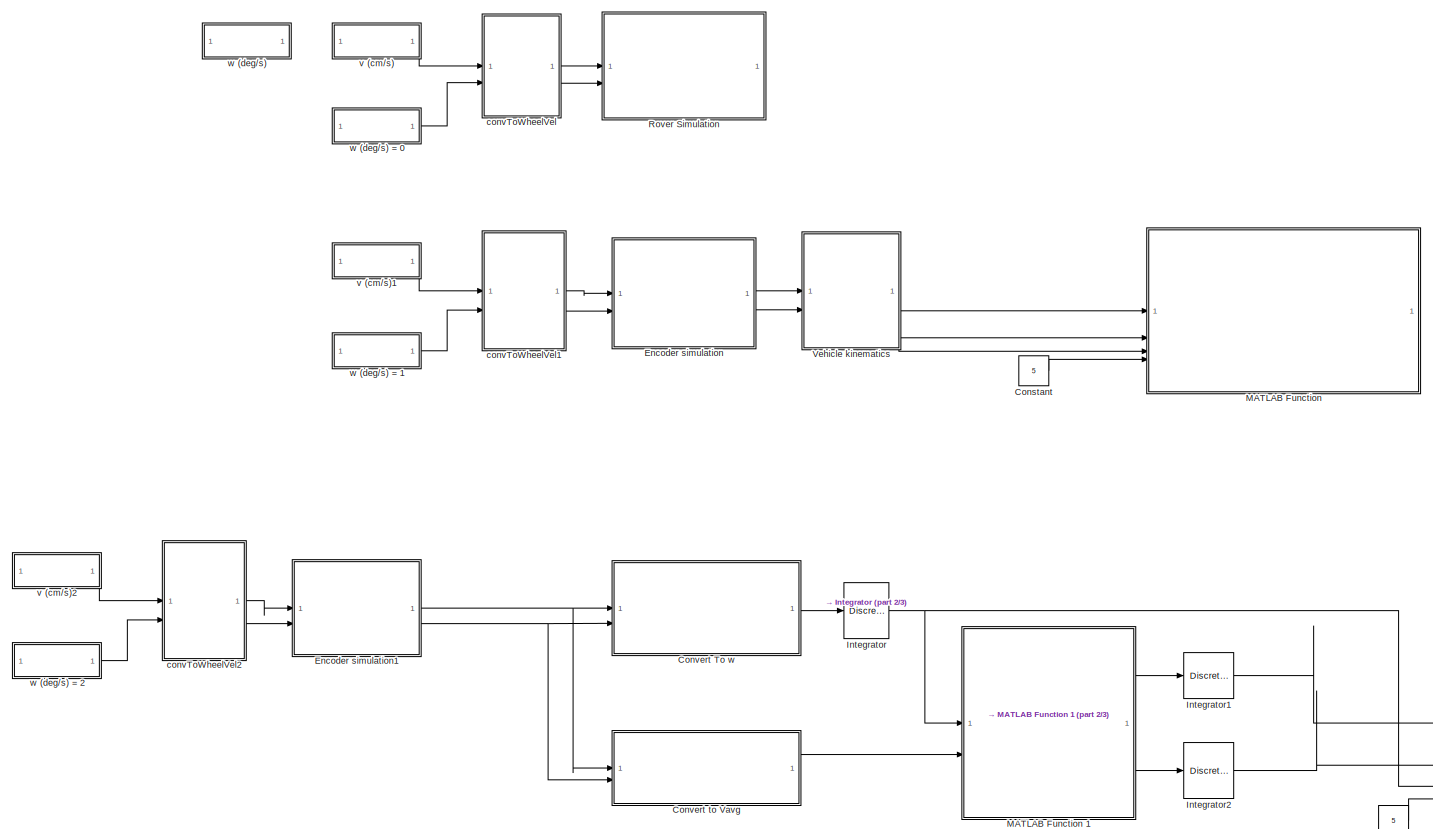
[diagram: root canvas - part 1/3, full width, top band]
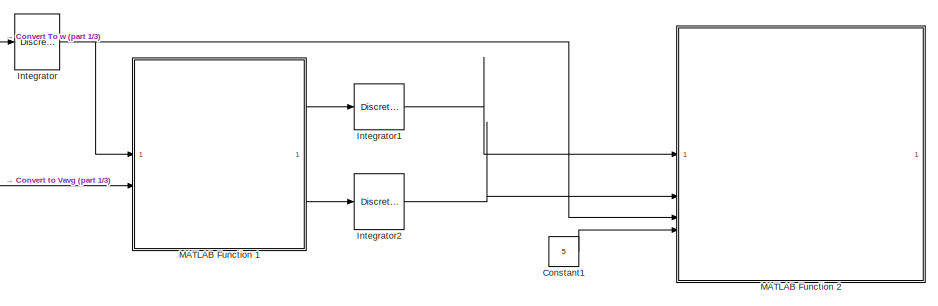
[diagram: root canvas - part 2/3, middle right region]
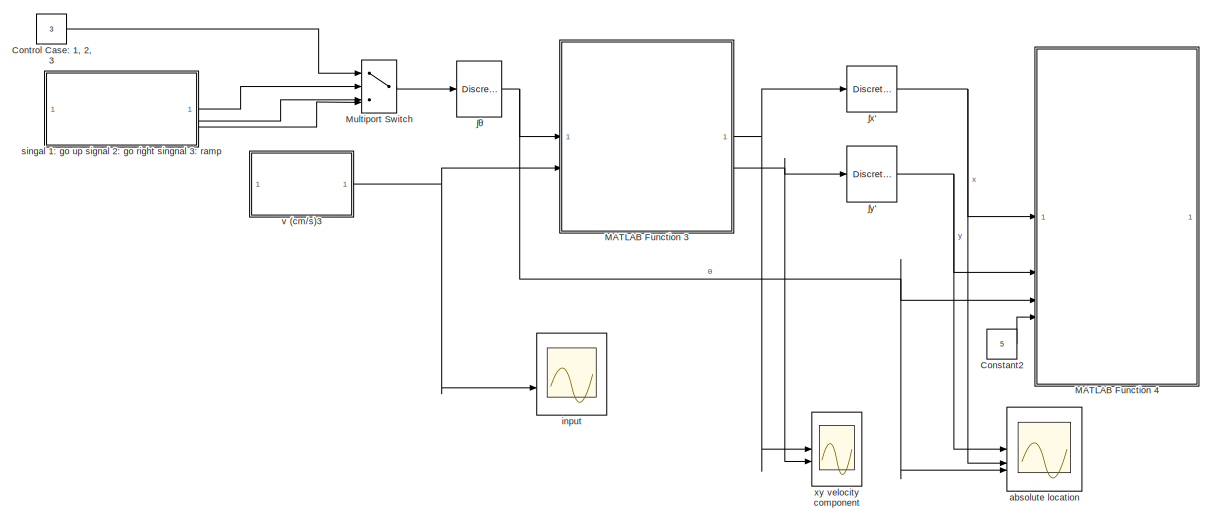
[diagram: root canvas - part 3/3, bottom center region]
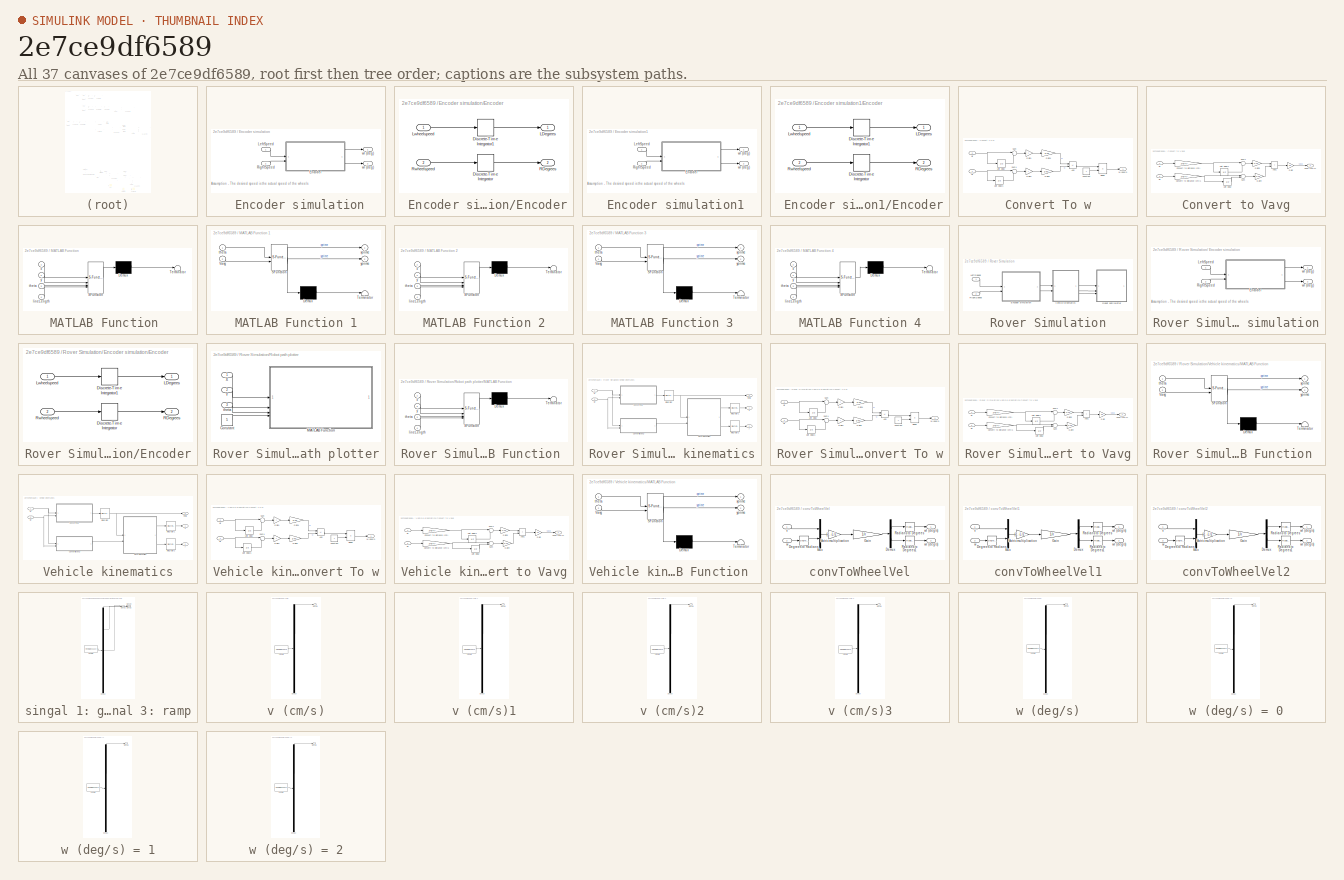
[diagram: thumbnail index - all 37 canvases of the model, root first then tree order]
MODEL slx_2e7ce9df6589
KIND model
CONFIG AbsTol = auto
CONFIG EnableMultiTasking = on
CONFIG FixedStep = TS
CONFIG MaxStep = auto
CONFIG MinStep = auto
CONFIG PostLoadFcn = params
CONFIG RelTol = 1e-3
CONFIG SampleTimeConstraint = Unconstrained
CONFIG SolverName = FixedStepDiscrete
CONFIG StartTime = 0.0
CONFIG StopTime = 5
WORKSPACE source: mxarray member
WORKSPACE Ia = 0.1
WORKSPACE Id = 0.25
WORKSPACE Pa = 5
WORKSPACE Pd = 9
WORKSPACE TS = 0.01
BLOCK [SubSystem]  Encoder simulation
  Commented = on
BLOCK [SubSystem]  Encoder simulation/Encoder
BLOCK [DiscreteIntegrator]  Encoder simulation/Encoder/Discrete-Time Integrator
  ICPrevOutput = DiscIntNeverNeededParam
  ICPrevScaledInput = DiscIntNeverNeededParam
  InitialConditionSetting = Auto
  SampleTime = -1
BLOCK [DiscreteIntegrator]  Encoder simulation/Encoder/Discrete-Time Integrator1
  ICPrevOutput = DiscIntNeverNeededParam
  ICPrevScaledInput = DiscIntNeverNeededParam
  InitialConditionSetting = Auto
  SampleTime = -1
BLOCK [Outport]  Encoder simulation/Encoder/LDegrees
  VectorParamsAs1DForOutWhenUnconnected = off
BLOCK [Inport]  Encoder simulation/Encoder/Lwheelspeed
BLOCK [Outport]  Encoder simulation/Encoder/RDegrees
  Port = 2
  VectorParamsAs1DForOutWhenUnconnected = off
BLOCK [Inport]  Encoder simulation/Encoder/Rwheelspeed
  Port = 2
BLOCK [Inport]  Encoder simulation/LeftSpeed
BLOCK [Inport]  Encoder simulation/RightSpeed
  Port = 2
BLOCK [Outport]  Encoder simulation/wl (deg)
  VectorParamsAs1DForOutWhenUnconnected = off
BLOCK [Outport]  Encoder simulation/wr (deg)
  Port = 2
  VectorParamsAs1DForOutWhenUnconnected = off
BLOCK [SubSystem]  Encoder simulation1
  Commented = on
BLOCK [SubSystem]  Encoder simulation1/Encoder
BLOCK [DiscreteIntegrator]  Encoder simulation1/Encoder/Discrete-Time Integrator
  ICPrevOutput = DiscIntNeverNeededParam
  ICPrevScaledInput = DiscIntNeverNeededParam
  InitialConditionSetting = Auto
  SampleTime = -1
BLOCK [DiscreteIntegrator]  Encoder simulation1/Encoder/Discrete-Time Integrator1
  ICPrevOutput = DiscIntNeverNeededParam
  ICPrevScaledInput = DiscIntNeverNeededParam
  InitialConditionSetting = Auto
  SampleTime = -1
BLOCK [Outport]  Encoder simulation1/Encoder/LDegrees
  VectorParamsAs1DForOutWhenUnconnected = off
BLOCK [Inport]  Encoder simulation1/Encoder/Lwheelspeed
BLOCK [Outport]  Encoder simulation1/Encoder/RDegrees
  Port = 2
  VectorParamsAs1DForOutWhenUnconnected = off
BLOCK [Inport]  Encoder simulation1/Encoder/Rwheelspeed
  Port = 2
BLOCK [Inport]  Encoder simulation1/LeftSpeed
BLOCK [Inport]  Encoder simulation1/RightSpeed
  Port = 2
BLOCK [Outport]  Encoder simulation1/wl (deg)
  VectorParamsAs1DForOutWhenUnconnected = off
BLOCK [Outport]  Encoder simulation1/wr (deg)
  Port = 2
  VectorParamsAs1DForOutWhenUnconnected = off
BLOCK [Constant] Constant
  Commented = on
  Value = 5
BLOCK [Constant] Constant1
  Commented = on
  Value = 5
BLOCK [Constant] Constant2
  Value = 5
BLOCK [Constant] Control Case: 1, 2, 3
  Value = 3
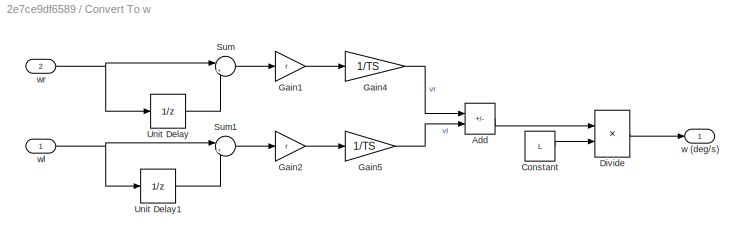
BLOCK [SubSystem] Convert To w
  Commented = on
BLOCK [Sum] Convert To w/Add
  IconShape = rectangular
  Inputs = +-
BLOCK [Constant] Convert To w/Constant
  Value = L
BLOCK [Product] Convert To w/Divide
  Inputs = */
BLOCK [Gain] Convert To w/Gain1
  Gain = r
BLOCK [Gain] Convert To w/Gain2
  Gain = r
BLOCK [Gain] Convert To w/Gain4
  Gain = 1/TS
BLOCK [Gain] Convert To w/Gain5
  Gain = 1/TS
BLOCK [Sum] Convert To w/Sum
  Inputs = |+-
BLOCK [Sum] Convert To w/Sum1
  Inputs = |+-
BLOCK [UnitDelay] Convert To w/Unit Delay
  HasFrameUpgradeWarning = on
  SampleTime = -1
BLOCK [UnitDelay] Convert To w/Unit Delay1
  HasFrameUpgradeWarning = on
  SampleTime = -1
BLOCK [Outport] Convert To w/w (deg//s)
  VectorParamsAs1DForOutWhenUnconnected = off
BLOCK [Inport] Convert To w/wl
BLOCK [Inport] Convert To w/wr
  Port = 2
BLOCK [SubSystem] Convert to Vavg
  Commented = on
BLOCK [Sum] Convert to Vavg/Add1
  IconShape = rectangular
BLOCK [Gain] Convert to Vavg/Convert to distance (cm)
  Gain = 2*pi*r/360
BLOCK [Gain] Convert to Vavg/Convert to distance (cm)1
  Gain = 2*pi*r/360
BLOCK [Gain] Convert to Vavg/Gain
  Gain = 0.5
BLOCK [Gain] Convert to Vavg/Gain4
  Gain = 1/TS
BLOCK [Gain] Convert to Vavg/Gain5
  Gain = 1/TS
BLOCK [Sum] Convert to Vavg/Sum
  Inputs = |+-
BLOCK [Sum] Convert to Vavg/Sum1
  Inputs = |+-
BLOCK [UnitDelay] Convert to Vavg/Unit Delay
  HasFrameUpgradeWarning = on
  SampleTime = -1
BLOCK [UnitDelay] Convert to Vavg/Unit Delay1
  HasFrameUpgradeWarning = on
  SampleTime = -1
BLOCK [Outport] Convert to Vavg/Vavg (cm//s)
  VectorParamsAs1DForOutWhenUnconnected = off
BLOCK [Inport] Convert to Vavg/wl
BLOCK [Inport] Convert to Vavg/wr
  Port = 2
BLOCK [DiscreteIntegrator] Integrator
  Commented = on
  ICPrevOutput = DiscIntNeverNeededParam
  ICPrevScaledInput = DiscIntNeverNeededParam
  InitialCondition = StartTheta
  InitialConditionSetting = Auto
  SampleTime = -1
  gainval = 1
BLOCK [DiscreteIntegrator] Integrator1
  Commented = on
  ICPrevOutput = DiscIntNeverNeededParam
  ICPrevScaledInput = DiscIntNeverNeededParam
  InitialCondition = StartX
  InitialConditionSetting = Auto
  SampleTime = -1
  gainval = 1
BLOCK [DiscreteIntegrator] Integrator2
  Commented = on
  ICPrevOutput = DiscIntNeverNeededParam
  ICPrevScaledInput = DiscIntNeverNeededParam
  InitialCondition = StartY
  InitialConditionSetting = Auto
  SampleTime = -1
  gainval = 1
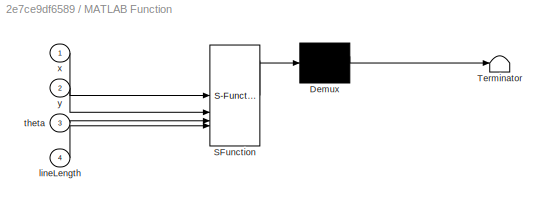
BLOCK [SubSystem] MATLAB Function 
  Commented = on
  ErrorFcn = Stateflow.Translate.translate
  PermitHierarchicalResolution = ExplicitOnly
  SFBlockType = MATLAB Function
  TreatAsAtomicUnit = on
BLOCK [Demux] MATLAB Function / Demux 
  Outputs = 1
BLOCK [S-Function] MATLAB Function / SFunction 
  EnableBusSupport = on
  FunctionName = sf_sfun
  Parameters = StartTheta,StartX,StartY
  PortCounts = [4 1]
  SFcnIsStateOwnerBlock = off
  SFunctionDeploymentMode = off
  Tag = Stateflow S-Function 3
BLOCK [Terminator] MATLAB Function / Terminator 
BLOCK [Inport] MATLAB Function /lineLength
  Port = 4
BLOCK [Inport] MATLAB Function /theta
  Port = 3
BLOCK [Inport] MATLAB Function /x
BLOCK [Inport] MATLAB Function /y
  Port = 2
BLOCK [SubSystem] MATLAB Function 1
  Commented = on
  ErrorFcn = Stateflow.Translate.translate
  PermitHierarchicalResolution = ExplicitOnly
  SFBlockType = MATLAB Function
  TreatAsAtomicUnit = on
BLOCK [Demux] MATLAB Function 1/ Demux 
  Outputs = 1
BLOCK [S-Function] MATLAB Function 1/ SFunction 
  EnableBusSupport = on
  FunctionName = sf_sfun
  PortCounts = [2 3]
  SFcnIsStateOwnerBlock = off
  SFunctionDeploymentMode = off
  Tag = Stateflow S-Function 4
BLOCK [Terminator] MATLAB Function 1/ Terminator 
BLOCK [Inport] MATLAB Function 1/Vavg
  Port = 2
BLOCK [Inport] MATLAB Function 1/theta
BLOCK [Outport] MATLAB Function 1/xprime
  VectorParamsAs1DForOutWhenUnconnected = off
BLOCK [Outport] MATLAB Function 1/yprime
  Port = 2
  VectorParamsAs1DForOutWhenUnconnected = off
BLOCK [SubSystem] MATLAB Function 2
  Commented = on
  ErrorFcn = Stateflow.Translate.translate
  PermitHierarchicalResolution = ExplicitOnly
  SFBlockType = MATLAB Function
  TreatAsAtomicUnit = on
BLOCK [Demux] MATLAB Function 2/ Demux 
  Outputs = 1
BLOCK [S-Function] MATLAB Function 2/ SFunction 
  EnableBusSupport = on
  FunctionName = sf_sfun
  Parameters = StartTheta,StartX,StartY
  PortCounts = [4 1]
  SFcnIsStateOwnerBlock = off
  SFunctionDeploymentMode = off
  Tag = Stateflow S-Function 5
BLOCK [Terminator] MATLAB Function 2/ Terminator 
BLOCK [Inport] MATLAB Function 2/lineLength
  Port = 4
BLOCK [Inport] MATLAB Function 2/theta
  Port = 3
BLOCK [Inport] MATLAB Function 2/x
BLOCK [Inport] MATLAB Function 2/y
  Port = 2
BLOCK [SubSystem] MATLAB Function 3
  ErrorFcn = Stateflow.Translate.translate
  PermitHierarchicalResolution = ExplicitOnly
  SFBlockType = MATLAB Function
  TreatAsAtomicUnit = on
BLOCK [Demux] MATLAB Function 3/ Demux 
  Outputs = 1
BLOCK [S-Function] MATLAB Function 3/ SFunction 
  EnableBusSupport = on
  FunctionName = sf_sfun
  PortCounts = [2 3]
  SFcnIsStateOwnerBlock = off
  SFunctionDeploymentMode = off
  Tag = Stateflow S-Function 7
BLOCK [Terminator] MATLAB Function 3/ Terminator 
BLOCK [Inport] MATLAB Function 3/Vavg
  Port = 2
BLOCK [Inport] MATLAB Function 3/theta
BLOCK [Outport] MATLAB Function 3/xprime
  VectorParamsAs1DForOutWhenUnconnected = off
BLOCK [Outport] MATLAB Function 3/yprime
  Port = 2
  VectorParamsAs1DForOutWhenUnconnected = off
BLOCK [SubSystem] MATLAB Function 4
  ErrorFcn = Stateflow.Translate.translate
  PermitHierarchicalResolution = ExplicitOnly
  SFBlockType = MATLAB Function
  TreatAsAtomicUnit = on
BLOCK [Demux] MATLAB Function 4/ Demux 
  Outputs = 1
BLOCK [S-Function] MATLAB Function 4/ SFunction 
  EnableBusSupport = on
  FunctionName = sf_sfun
  Parameters = StartTheta,StartX,StartY
  PortCounts = [4 1]
  SFcnIsStateOwnerBlock = off
  SFunctionDeploymentMode = off
  Tag = Stateflow S-Function 8
BLOCK [Terminator] MATLAB Function 4/ Terminator 
BLOCK [Inport] MATLAB Function 4/lineLength
  Port = 4
BLOCK [Inport] MATLAB Function 4/theta
  Port = 3
BLOCK [Inport] MATLAB Function 4/x
BLOCK [Inport] MATLAB Function 4/y
  Port = 2
BLOCK [MultiPortSwitch] Multiport Switch 
  InputSameDT = off
  SaturateOnIntegerOverflow = off
BLOCK [SubSystem] Rover Simulation
  Commented = on
BLOCK [SubSystem] Rover Simulation/ Encoder simulation
BLOCK [SubSystem] Rover Simulation/ Encoder simulation/Encoder
BLOCK [DiscreteIntegrator] Rover Simulation/ Encoder simulation/Encoder/Discrete-Time Integrator
  ICPrevOutput = DiscIntNeverNeededParam
  ICPrevScaledInput = DiscIntNeverNeededParam
  InitialConditionSetting = Auto
  SampleTime = -1
BLOCK [DiscreteIntegrator] Rover Simulation/ Encoder simulation/Encoder/Discrete-Time Integrator1
  ICPrevOutput = DiscIntNeverNeededParam
  ICPrevScaledInput = DiscIntNeverNeededParam
  InitialConditionSetting = Auto
  SampleTime = -1
BLOCK [Outport] Rover Simulation/ Encoder simulation/Encoder/LDegrees
  VectorParamsAs1DForOutWhenUnconnected = off
BLOCK [Inport] Rover Simulation/ Encoder simulation/Encoder/Lwheelspeed
BLOCK [Outport] Rover Simulation/ Encoder simulation/Encoder/RDegrees
  Port = 2
  VectorParamsAs1DForOutWhenUnconnected = off
BLOCK [Inport] Rover Simulation/ Encoder simulation/Encoder/Rwheelspeed
  Port = 2
BLOCK [Inport] Rover Simulation/ Encoder simulation/LeftSpeed
BLOCK [Inport] Rover Simulation/ Encoder simulation/RightSpeed
  Port = 2
BLOCK [Outport] Rover Simulation/ Encoder simulation/wl (deg)
  VectorParamsAs1DForOutWhenUnconnected = off
BLOCK [Outport] Rover Simulation/ Encoder simulation/wr (deg)
  Port = 2
  VectorParamsAs1DForOutWhenUnconnected = off
BLOCK [Inport] Rover Simulation/LeftSpeed
BLOCK [Inport] Rover Simulation/RightSpeed
  Port = 2
BLOCK [SubSystem] Rover Simulation/Robot path plotter
BLOCK [Constant] Rover Simulation/Robot path plotter/Constant
  Value = 5
BLOCK [SubSystem] Rover Simulation/Robot path plotter/MATLAB Function 
  ErrorFcn = Stateflow.Translate.translate
  PermitHierarchicalResolution = ExplicitOnly
  SFBlockType = MATLAB Function
  TreatAsAtomicUnit = on
BLOCK [Demux] Rover Simulation/Robot path plotter/MATLAB Function / Demux 
  Outputs = 1
BLOCK [S-Function] Rover Simulation/Robot path plotter/MATLAB Function / SFunction 
  EnableBusSupport = on
  FunctionName = sf_sfun
  Parameters = StartTheta,StartX,StartY
  PortCounts = [4 1]
  SFcnIsStateOwnerBlock = off
  SFunctionDeploymentMode = off
  Tag = Stateflow S-Function 1
BLOCK [Terminator] Rover Simulation/Robot path plotter/MATLAB Function / Terminator 
BLOCK [Inport] Rover Simulation/Robot path plotter/MATLAB Function /lineLength
  Port = 4
BLOCK [Inport] Rover Simulation/Robot path plotter/MATLAB Function /theta
  Port = 3
BLOCK [Inport] Rover Simulation/Robot path plotter/MATLAB Function /x
BLOCK [Inport] Rover Simulation/Robot path plotter/MATLAB Function /y
  Port = 2
BLOCK [Inport] Rover Simulation/Robot path plotter/X
BLOCK [Inport] Rover Simulation/Robot path plotter/Y
  Port = 2
BLOCK [Inport] Rover Simulation/Robot path plotter/theta
  Port = 3
BLOCK [SubSystem] Rover Simulation/Vehicle kinematics
BLOCK [SubSystem] Rover Simulation/Vehicle kinematics/Convert To w
BLOCK [Sum] Rover Simulation/Vehicle kinematics/Convert To w/Add
  IconShape = rectangular
  Inputs = +-
BLOCK [Constant] Rover Simulation/Vehicle kinematics/Convert To w/Constant
  Value = L
BLOCK [Product] Rover Simulation/Vehicle kinematics/Convert To w/Divide
  Inputs = */
BLOCK [Gain] Rover Simulation/Vehicle kinematics/Convert To w/Gain1
  Gain = r
BLOCK [Gain] Rover Simulation/Vehicle kinematics/Convert To w/Gain2
  Gain = r
BLOCK [Gain] Rover Simulation/Vehicle kinematics/Convert To w/Gain4
  Gain = 1/TS
BLOCK [Gain] Rover Simulation/Vehicle kinematics/Convert To w/Gain5
  Gain = 1/TS
BLOCK [Sum] Rover Simulation/Vehicle kinematics/Convert To w/Sum
  Inputs = |+-
BLOCK [Sum] Rover Simulation/Vehicle kinematics/Convert To w/Sum1
  Inputs = |+-
BLOCK [UnitDelay] Rover Simulation/Vehicle kinematics/Convert To w/Unit Delay
  HasFrameUpgradeWarning = on
  SampleTime = -1
BLOCK [UnitDelay] Rover Simulation/Vehicle kinematics/Convert To w/Unit Delay1
  HasFrameUpgradeWarning = on
  SampleTime = -1
BLOCK [Outport] Rover Simulation/Vehicle kinematics/Convert To w/w (deg//s)
  VectorParamsAs1DForOutWhenUnconnected = off
BLOCK [Inport] Rover Simulation/Vehicle kinematics/Convert To w/wl
BLOCK [Inport] Rover Simulation/Vehicle kinematics/Convert To w/wr
  Port = 2
BLOCK [SubSystem] Rover Simulation/Vehicle kinematics/Convert to Vavg
BLOCK [Sum] Rover Simulation/Vehicle kinematics/Convert to Vavg/Add1
  IconShape = rectangular
BLOCK [Gain] Rover Simulation/Vehicle kinematics/Convert to Vavg/Convert to distance (cm)
  Gain = 2*pi*r/360
BLOCK [Gain] Rover Simulation/Vehicle kinematics/Convert to Vavg/Convert to distance (cm)1
  Gain = 2*pi*r/360
BLOCK [Gain] Rover Simulation/Vehicle kinematics/Convert to Vavg/Gain
  Gain = 0.5
BLOCK [Gain] Rover Simulation/Vehicle kinematics/Convert to Vavg/Gain4
  Gain = 1/TS
BLOCK [Gain] Rover Simulation/Vehicle kinematics/Convert to Vavg/Gain5
  Gain = 1/TS
BLOCK [Sum] Rover Simulation/Vehicle kinematics/Convert to Vavg/Sum
  Inputs = |+-
BLOCK [Sum] Rover Simulation/Vehicle kinematics/Convert to Vavg/Sum1
  Inputs = |+-
BLOCK [UnitDelay] Rover Simulation/Vehicle kinematics/Convert to Vavg/Unit Delay
  HasFrameUpgradeWarning = on
  SampleTime = -1
BLOCK [UnitDelay] Rover Simulation/Vehicle kinematics/Convert to Vavg/Unit Delay1
  HasFrameUpgradeWarning = on
  SampleTime = -1
BLOCK [Outport] Rover Simulation/Vehicle kinematics/Convert to Vavg/Vavg (cm//s)
  VectorParamsAs1DForOutWhenUnconnected = off
BLOCK [Inport] Rover Simulation/Vehicle kinematics/Convert to Vavg/wl
BLOCK [Inport] Rover Simulation/Vehicle kinematics/Convert to Vavg/wr
  Port = 2
BLOCK [DiscreteIntegrator] Rover Simulation/Vehicle kinematics/Integrator
  ICPrevOutput = DiscIntNeverNeededParam
  ICPrevScaledInput = DiscIntNeverNeededParam
  InitialCondition = StartTheta
  InitialConditionSetting = Auto
  SampleTime = -1
  gainval = 1
BLOCK [DiscreteIntegrator] Rover Simulation/Vehicle kinematics/Integrator1
  ICPrevOutput = DiscIntNeverNeededParam
  ICPrevScaledInput = DiscIntNeverNeededParam
  InitialCondition = StartX
  InitialConditionSetting = Auto
  SampleTime = -1
  gainval = 1
BLOCK [DiscreteIntegrator] Rover Simulation/Vehicle kinematics/Integrator2
  ICPrevOutput = DiscIntNeverNeededParam
  ICPrevScaledInput = DiscIntNeverNeededParam
  InitialCondition = StartY
  InitialConditionSetting = Auto
  SampleTime = -1
  gainval = 1
BLOCK [SubSystem] Rover Simulation/Vehicle kinematics/MATLAB Function 
  ErrorFcn = Stateflow.Translate.translate
  PermitHierarchicalResolution = ExplicitOnly
  SFBlockType = MATLAB Function
  TreatAsAtomicUnit = on
BLOCK [Demux] Rover Simulation/Vehicle kinematics/MATLAB Function / Demux 
  Outputs = 1
BLOCK [S-Function] Rover Simulation/Vehicle kinematics/MATLAB Function / SFunction 
  EnableBusSupport = on
  FunctionName = sf_sfun
  PortCounts = [2 3]
  SFcnIsStateOwnerBlock = off
  SFunctionDeploymentMode = off
  Tag = Stateflow S-Function 2
BLOCK [Terminator] Rover Simulation/Vehicle kinematics/MATLAB Function / Terminator 
BLOCK [Inport] Rover Simulation/Vehicle kinematics/MATLAB Function /Vavg
  Port = 2
BLOCK [Inport] Rover Simulation/Vehicle kinematics/MATLAB Function /theta
BLOCK [Outport] Rover Simulation/Vehicle kinematics/MATLAB Function /xprime
  VectorParamsAs1DForOutWhenUnconnected = off
BLOCK [Outport] Rover Simulation/Vehicle kinematics/MATLAB Function /yprime
  Port = 2
  VectorParamsAs1DForOutWhenUnconnected = off
BLOCK [Outport] Rover Simulation/Vehicle kinematics/theta
  Port = 3
  VectorParamsAs1DForOutWhenUnconnected = off
BLOCK [Inport] Rover Simulation/Vehicle kinematics/wl
BLOCK [Inport] Rover Simulation/Vehicle kinematics/wr
  Port = 2
BLOCK [Outport] Rover Simulation/Vehicle kinematics/x
  VectorParamsAs1DForOutWhenUnconnected = off
BLOCK [Outport] Rover Simulation/Vehicle kinematics/y
  Port = 2
  VectorParamsAs1DForOutWhenUnconnected = off
BLOCK [SubSystem] Vehicle kinematics
  Commented = on
BLOCK [SubSystem] Vehicle kinematics/Convert To w
BLOCK [Sum] Vehicle kinematics/Convert To w/Add
  IconShape = rectangular
  Inputs = +-
BLOCK [Constant] Vehicle kinematics/Convert To w/Constant
  Value = L
BLOCK [Product] Vehicle kinematics/Convert To w/Divide
  Inputs = */
BLOCK [Gain] Vehicle kinematics/Convert To w/Gain1
  Gain = r
BLOCK [Gain] Vehicle kinematics/Convert To w/Gain2
  Gain = r
BLOCK [Gain] Vehicle kinematics/Convert To w/Gain4
  Gain = 1/TS
BLOCK [Gain] Vehicle kinematics/Convert To w/Gain5
  Gain = 1/TS
BLOCK [Sum] Vehicle kinematics/Convert To w/Sum
  Inputs = |+-
BLOCK [Sum] Vehicle kinematics/Convert To w/Sum1
  Inputs = |+-
BLOCK [UnitDelay] Vehicle kinematics/Convert To w/Unit Delay
  HasFrameUpgradeWarning = on
  SampleTime = -1
BLOCK [UnitDelay] Vehicle kinematics/Convert To w/Unit Delay1
  HasFrameUpgradeWarning = on
  SampleTime = -1
BLOCK [Outport] Vehicle kinematics/Convert To w/w (deg//s)
  VectorParamsAs1DForOutWhenUnconnected = off
BLOCK [Inport] Vehicle kinematics/Convert To w/wl
BLOCK [Inport] Vehicle kinematics/Convert To w/wr
  Port = 2
BLOCK [SubSystem] Vehicle kinematics/Convert to Vavg
BLOCK [Sum] Vehicle kinematics/Convert to Vavg/Add1
  IconShape = rectangular
BLOCK [Gain] Vehicle kinematics/Convert to Vavg/Convert to distance (cm)
  Gain = 2*pi*r/360
BLOCK [Gain] Vehicle kinematics/Convert to Vavg/Convert to distance (cm)1
  Gain = 2*pi*r/360
BLOCK [Gain] Vehicle kinematics/Convert to Vavg/Gain
  Gain = 0.5
BLOCK [Gain] Vehicle kinematics/Convert to Vavg/Gain4
  Gain = 1/TS
BLOCK [Gain] Vehicle kinematics/Convert to Vavg/Gain5
  Gain = 1/TS
BLOCK [Sum] Vehicle kinematics/Convert to Vavg/Sum
  Inputs = |+-
BLOCK [Sum] Vehicle kinematics/Convert to Vavg/Sum1
  Inputs = |+-
BLOCK [UnitDelay] Vehicle kinematics/Convert to Vavg/Unit Delay
  HasFrameUpgradeWarning = on
  SampleTime = -1
BLOCK [UnitDelay] Vehicle kinematics/Convert to Vavg/Unit Delay1
  HasFrameUpgradeWarning = on
  SampleTime = -1
BLOCK [Outport] Vehicle kinematics/Convert to Vavg/Vavg (cm//s)
  VectorParamsAs1DForOutWhenUnconnected = off
BLOCK [Inport] Vehicle kinematics/Convert to Vavg/wl
BLOCK [Inport] Vehicle kinematics/Convert to Vavg/wr
  Port = 2
BLOCK [DiscreteIntegrator] Vehicle kinematics/Integrator
  ICPrevOutput = DiscIntNeverNeededParam
  ICPrevScaledInput = DiscIntNeverNeededParam
  InitialCondition = StartTheta
  InitialConditionSetting = Auto
  SampleTime = -1
  gainval = 1
BLOCK [DiscreteIntegrator] Vehicle kinematics/Integrator1
  ICPrevOutput = DiscIntNeverNeededParam
  ICPrevScaledInput = DiscIntNeverNeededParam
  InitialCondition = StartX
  InitialConditionSetting = Auto
  SampleTime = -1
  gainval = 1
BLOCK [DiscreteIntegrator] Vehicle kinematics/Integrator2
  ICPrevOutput = DiscIntNeverNeededParam
  ICPrevScaledInput = DiscIntNeverNeededParam
  InitialCondition = StartY
  InitialConditionSetting = Auto
  SampleTime = -1
  gainval = 1
BLOCK [SubSystem] Vehicle kinematics/MATLAB Function 
  ErrorFcn = Stateflow.Translate.translate
  PermitHierarchicalResolution = ExplicitOnly
  SFBlockType = MATLAB Function
  TreatAsAtomicUnit = on
BLOCK [Demux] Vehicle kinematics/MATLAB Function / Demux 
  Outputs = 1
BLOCK [S-Function] Vehicle kinematics/MATLAB Function / SFunction 
  EnableBusSupport = on
  FunctionName = sf_sfun
  PortCounts = [2 3]
  SFcnIsStateOwnerBlock = off
  SFunctionDeploymentMode = off
  Tag = Stateflow S-Function 6
BLOCK [Terminator] Vehicle kinematics/MATLAB Function / Terminator 
BLOCK [Inport] Vehicle kinematics/MATLAB Function /Vavg
  Port = 2
BLOCK [Inport] Vehicle kinematics/MATLAB Function /theta
BLOCK [Outport] Vehicle kinematics/MATLAB Function /xprime
  VectorParamsAs1DForOutWhenUnconnected = off
BLOCK [Outport] Vehicle kinematics/MATLAB Function /yprime
  Port = 2
  VectorParamsAs1DForOutWhenUnconnected = off
BLOCK [Outport] Vehicle kinematics/theta
  Port = 3
  VectorParamsAs1DForOutWhenUnconnected = off
BLOCK [Inport] Vehicle kinematics/wl
BLOCK [Inport] Vehicle kinematics/wr
  Port = 2
BLOCK [Outport] Vehicle kinematics/x
  VectorParamsAs1DForOutWhenUnconnected = off
BLOCK [Outport] Vehicle kinematics/y
  Port = 2
  VectorParamsAs1DForOutWhenUnconnected = off
BLOCK [Scope] absolute location
  Floating = off
  NumInputPorts = 3
  ScopeSpecificationString = Simulink.scopes.TimeScopeBlockCfg('CurrentConfiguration', extmgr.ConfigurationSet(extmgr.Configuration('Core','General UI',true),extmgr.Configuration('Core','Source UI',true),extmgr.Configuration('Sources','WiredSimulink',true,'DataLoggingVariableName','absolute_location','DataLogging',true),extmgr.Configuration('Visuals','Time Domain',true,'SerializedDisplays',{struct('MinYLimReal','11.25','MaxYL...<+1493ch>
BLOCK [SubSystem] convToWheelVel
  Commented = on
BLOCK [Gain] convToWheelVel/ Gain
  Gain = 1/r
  Multiplication = Matrix(K*u)
BLOCK [Reference] convToWheelVel/Degrees to Radians  REF=simulink_extras/Transformations/Degrees to
Radians
  SourceBlock = simulink_extras/Transformations/Degrees to\nRadians
  SourceType = DegreesToRadians
BLOCK [Demux] convToWheelVel/Demux
  Outputs = 2
BLOCK [Gain] convToWheelVel/Matrix multiplication
  Gain = [1 -L/2; 1 L/2]
  Multiplication = Matrix(K*u)
BLOCK [Mux] convToWheelVel/Mux
  DisplayOption = bar
  Inputs = 2
BLOCK [Reference] convToWheelVel/Radians to Degrees  REF=simulink_extras/Transformations/Radians
to Degrees
  SourceBlock = simulink_extras/Transformations/Radians\nto Degrees
  SourceType = RadiansToDegrees
BLOCK [Reference] convToWheelVel/Radians to Degrees1  REF=simulink_extras/Transformations/Radians
to Degrees
  SourceBlock = simulink_extras/Transformations/Radians\nto Degrees
  SourceType = RadiansToDegrees
BLOCK [Inport] convToWheelVel/v
BLOCK [Inport] convToWheelVel/w
  Port = 2
BLOCK [Outport] convToWheelVel/wl (deg//s)
  VectorParamsAs1DForOutWhenUnconnected = off
BLOCK [Outport] convToWheelVel/wr (deg//s)
  Port = 2
  VectorParamsAs1DForOutWhenUnconnected = off
BLOCK [SubSystem] convToWheelVel1
  Commented = on
BLOCK [Gain] convToWheelVel1/ Gain
  Gain = 1/r
  Multiplication = Matrix(K*u)
BLOCK [Reference] convToWheelVel1/Degrees to Radians  REF=simulink_extras/Transformations/Degrees to
Radians
  SourceBlock = simulink_extras/Transformations/Degrees to\nRadians
  SourceType = DegreesToRadians
BLOCK [Demux] convToWheelVel1/Demux
  Outputs = 2
BLOCK [Gain] convToWheelVel1/Matrix multiplication
  Gain = [1 -L/2; 1 L/2]
  Multiplication = Matrix(K*u)
BLOCK [Mux] convToWheelVel1/Mux
  DisplayOption = bar
  Inputs = 2
BLOCK [Reference] convToWheelVel1/Radians to Degrees  REF=simulink_extras/Transformations/Radians
to Degrees
  SourceBlock = simulink_extras/Transformations/Radians\nto Degrees
  SourceType = RadiansToDegrees
BLOCK [Reference] convToWheelVel1/Radians to Degrees1  REF=simulink_extras/Transformations/Radians
to Degrees
  SourceBlock = simulink_extras/Transformations/Radians\nto Degrees
  SourceType = RadiansToDegrees
BLOCK [Inport] convToWheelVel1/v
BLOCK [Inport] convToWheelVel1/w
  Port = 2
BLOCK [Outport] convToWheelVel1/wl (deg//s)
  VectorParamsAs1DForOutWhenUnconnected = off
BLOCK [Outport] convToWheelVel1/wr (deg//s)
  Port = 2
  VectorParamsAs1DForOutWhenUnconnected = off
BLOCK [SubSystem] convToWheelVel2
  Commented = on
BLOCK [Gain] convToWheelVel2/ Gain
  Gain = 1/r
  Multiplication = Matrix(K*u)
BLOCK [Reference] convToWheelVel2/Degrees to Radians  REF=simulink_extras/Transformations/Degrees to
Radians
  SourceBlock = simulink_extras/Transformations/Degrees to\nRadians
  SourceType = DegreesToRadians
BLOCK [Demux] convToWheelVel2/Demux
  Outputs = 2
BLOCK [Gain] convToWheelVel2/Matrix multiplication
  Gain = [1 -L/2; 1 L/2]
  Multiplication = Matrix(K*u)
BLOCK [Mux] convToWheelVel2/Mux
  DisplayOption = bar
  Inputs = 2
BLOCK [Reference] convToWheelVel2/Radians to Degrees  REF=simulink_extras/Transformations/Radians
to Degrees
  SourceBlock = simulink_extras/Transformations/Radians\nto Degrees
  SourceType = RadiansToDegrees
BLOCK [Reference] convToWheelVel2/Radians to Degrees1  REF=simulink_extras/Transformations/Radians
to Degrees
  SourceBlock = simulink_extras/Transformations/Radians\nto Degrees
  SourceType = RadiansToDegrees
BLOCK [Inport] convToWheelVel2/v
BLOCK [Inport] convToWheelVel2/w
  Port = 2
BLOCK [Outport] convToWheelVel2/wl (deg//s)
  VectorParamsAs1DForOutWhenUnconnected = off
BLOCK [Outport] convToWheelVel2/wr (deg//s)
  Port = 2
  VectorParamsAs1DForOutWhenUnconnected = off
BLOCK [Scope] input
  Floating = off
  NumInputPorts = 2
  ScopeSpecificationString = Simulink.scopes.TimeScopeBlockCfg('CurrentConfiguration', extmgr.ConfigurationSet(extmgr.Configuration('Core','General UI',true),extmgr.Configuration('Core','Source UI',true),extmgr.Configuration('Sources','WiredSimulink',true),extmgr.Configuration('Visuals','Time Domain',true,'SerializedDisplays',{struct('MinYLimReal','-1.25','MaxYLimReal','11.25','YLabelReal','','MinYLimMag','0.00000','MaxYLimMa...<+1414ch>
BLOCK [SubSystem] singal 1: go up signal 2: go right singnal 3: ramp
  ClipboardFcn = sigbuilder_block('clipboard');
  CloseFcn = sigbuilder_block('close');
  ContinueFcn = sigbuilder_block('continue');
  CopyFcn = sigbuilder_block('copy');
  DeleteFcn = sigbuilder_block('delete');
  LoadFcn = sigbuilder_block('load');
  MaskHideContents = on
  ModelCloseFcn = sigbuilder_block('modelClose');
  NameChangeFcn = sigbuilder_block('namechange');
  OpenFcn = sigbuilder_block('open',[51 207.75 432.75 495.75 ]);
  PauseFcn = sigbuilder_block('pause');
  PreSaveFcn = sigbuilder_block('preSave');
  StartFcn = sigbuilder_block('start');
  StopFcn = sigbuilder_block('stop');
  Tag = STV Subsys
BLOCK [Demux] singal 1: go up signal 2: go right singnal 3: ramp/Demux
  DisplayOption = none
  Outputs = 3
  Tag = STV Demux
BLOCK [FromWorkspace] singal 1: go up signal 2: go right singnal 3: ramp/FromWs
  Tag = STV FromWs
  VariableName = tuvar
BLOCK [Outport] singal 1: go up signal 2: go right singnal 3: ramp/Signal 1
  Tag = STV Outport
  VectorParamsAs1DForOutWhenUnconnected = off
BLOCK [Outport] singal 1: go up signal 2: go right singnal 3: ramp/Signal 2
  Port = 2
  Tag = STV Outport
BLOCK [Outport] singal 1: go up signal 2: go right singnal 3: ramp/Signal 4
  Port = 3
  Tag = STV Outport
BLOCK [SubSystem] v (cm//s)
  ClipboardFcn = sigbuilder_block('clipboard');
  CloseFcn = sigbuilder_block('close');
  Commented = on
  ContinueFcn = sigbuilder_block('continue');
  CopyFcn = sigbuilder_block('copy');
  DeleteFcn = sigbuilder_block('delete');
  LoadFcn = sigbuilder_block('load');
  MaskHideContents = on
  ModelCloseFcn = sigbuilder_block('modelClose');
  NameChangeFcn = sigbuilder_block('namechange');
  OpenFcn = sigbuilder_block('open',[2.25 144.75 600.75 275.25 ]);
  PauseFcn = sigbuilder_block('pause');
  PreSaveFcn = sigbuilder_block('preSave');
  StartFcn = sigbuilder_block('start');
  StopFcn = sigbuilder_block('stop');
  Tag = STV Subsys
BLOCK [Demux] v (cm//s)/Demux
  DisplayOption = none
  Outputs = 1
  Tag = STV Demux
BLOCK [FromWorkspace] v (cm//s)/FromWs
  Tag = STV FromWs
  VariableName = tuvar
BLOCK [Outport] v (cm//s)/Signal 1
  Tag = STV Outport
  VectorParamsAs1DForOutWhenUnconnected = off
BLOCK [SubSystem] v (cm//s)1
  ClipboardFcn = sigbuilder_block('clipboard');
  CloseFcn = sigbuilder_block('close');
  Commented = on
  ContinueFcn = sigbuilder_block('continue');
  CopyFcn = sigbuilder_block('copy');
  DeleteFcn = sigbuilder_block('delete');
  LoadFcn = sigbuilder_block('load');
  MaskHideContents = on
  ModelCloseFcn = sigbuilder_block('modelClose');
  NameChangeFcn = sigbuilder_block('namechange');
  OpenFcn = sigbuilder_block('open',[2.25 144.75 600.75 275.25 ]);
  PauseFcn = sigbuilder_block('pause');
  PreSaveFcn = sigbuilder_block('preSave');
  StartFcn = sigbuilder_block('start');
  StopFcn = sigbuilder_block('stop');
  Tag = STV Subsys
BLOCK [Demux] v (cm//s)1/Demux
  DisplayOption = none
  Outputs = 1
  Tag = STV Demux
BLOCK [FromWorkspace] v (cm//s)1/FromWs
  Tag = STV FromWs
  VariableName = tuvar
BLOCK [Outport] v (cm//s)1/Signal 1
  Tag = STV Outport
  VectorParamsAs1DForOutWhenUnconnected = off
BLOCK [SubSystem] v (cm//s)2
  ClipboardFcn = sigbuilder_block('clipboard');
  CloseFcn = sigbuilder_block('close');
  Commented = on
  ContinueFcn = sigbuilder_block('continue');
  CopyFcn = sigbuilder_block('copy');
  DeleteFcn = sigbuilder_block('delete');
  LoadFcn = sigbuilder_block('load');
  MaskHideContents = on
  ModelCloseFcn = sigbuilder_block('modelClose');
  NameChangeFcn = sigbuilder_block('namechange');
  OpenFcn = sigbuilder_block('open',[2.25 144.75 600.75 275.25 ]);
  PauseFcn = sigbuilder_block('pause');
  PreSaveFcn = sigbuilder_block('preSave');
  StartFcn = sigbuilder_block('start');
  StopFcn = sigbuilder_block('stop');
  Tag = STV Subsys
BLOCK [Demux] v (cm//s)2/Demux
  DisplayOption = none
  Outputs = 1
  Tag = STV Demux
BLOCK [FromWorkspace] v (cm//s)2/FromWs
  Tag = STV FromWs
  VariableName = tuvar
BLOCK [Outport] v (cm//s)2/Signal 1
  Tag = STV Outport
  VectorParamsAs1DForOutWhenUnconnected = off
BLOCK [SubSystem] v (cm//s)3
  ClipboardFcn = sigbuilder_block('clipboard');
  CloseFcn = sigbuilder_block('close');
  ContinueFcn = sigbuilder_block('continue');
  CopyFcn = sigbuilder_block('copy');
  DeleteFcn = sigbuilder_block('delete');
  LoadFcn = sigbuilder_block('load');
  MaskHideContents = on
  ModelCloseFcn = sigbuilder_block('modelClose');
  NameChangeFcn = sigbuilder_block('namechange');
  OpenFcn = sigbuilder_block('open',[2.25 144.75 600.75 275.25 ]);
  PauseFcn = sigbuilder_block('pause');
  PreSaveFcn = sigbuilder_block('preSave');
  StartFcn = sigbuilder_block('start');
  StopFcn = sigbuilder_block('stop');
  Tag = STV Subsys
BLOCK [Demux] v (cm//s)3/Demux
  DisplayOption = none
  Outputs = 1
  Tag = STV Demux
BLOCK [FromWorkspace] v (cm//s)3/FromWs
  Tag = STV FromWs
  VariableName = tuvar
BLOCK [Outport] v (cm//s)3/Signal 1
  Tag = STV Outport
  VectorParamsAs1DForOutWhenUnconnected = off
BLOCK [SubSystem] w (deg//s)
  ClipboardFcn = sigbuilder_block('clipboard');
  CloseFcn = sigbuilder_block('close');
  Commented = on
  ContinueFcn = sigbuilder_block('continue');
  CopyFcn = sigbuilder_block('copy');
  DeleteFcn = sigbuilder_block('delete');
  LoadFcn = sigbuilder_block('load');
  MaskHideContents = on
  ModelCloseFcn = sigbuilder_block('modelClose');
  NameChangeFcn = sigbuilder_block('namechange');
  OpenFcn = sigbuilder_block('open',[210.75 142.5 475.5 277.5 ]);
  PauseFcn = sigbuilder_block('pause');
  PreSaveFcn = sigbuilder_block('preSave');
  StartFcn = sigbuilder_block('start');
  StopFcn = sigbuilder_block('stop');
  Tag = STV Subsys
BLOCK [SubSystem] w (deg//s) = 0
  ClipboardFcn = sigbuilder_block('clipboard');
  CloseFcn = sigbuilder_block('close');
  Commented = on
  ContinueFcn = sigbuilder_block('continue');
  CopyFcn = sigbuilder_block('copy');
  DeleteFcn = sigbuilder_block('delete');
  LoadFcn = sigbuilder_block('load');
  MaskHideContents = on
  ModelCloseFcn = sigbuilder_block('modelClose');
  NameChangeFcn = sigbuilder_block('namechange');
  OpenFcn = sigbuilder_block('open',[210.75 142.5 475.5 277.5 ]);
  PauseFcn = sigbuilder_block('pause');
  PreSaveFcn = sigbuilder_block('preSave');
  StartFcn = sigbuilder_block('start');
  StopFcn = sigbuilder_block('stop');
  Tag = STV Subsys
BLOCK [Demux] w (deg//s) = 0/Demux
  DisplayOption = none
  Outputs = 1
  Tag = STV Demux
BLOCK [FromWorkspace] w (deg//s) = 0/FromWs
  Tag = STV FromWs
  VariableName = tuvar
BLOCK [Outport] w (deg//s) = 0/Signal 1
  Tag = STV Outport
  VectorParamsAs1DForOutWhenUnconnected = off
BLOCK [SubSystem] w (deg//s) = 1
  ClipboardFcn = sigbuilder_block('clipboard');
  CloseFcn = sigbuilder_block('close');
  Commented = on
  ContinueFcn = sigbuilder_block('continue');
  CopyFcn = sigbuilder_block('copy');
  DeleteFcn = sigbuilder_block('delete');
  LoadFcn = sigbuilder_block('load');
  MaskHideContents = on
  ModelCloseFcn = sigbuilder_block('modelClose');
  NameChangeFcn = sigbuilder_block('namechange');
  OpenFcn = sigbuilder_block('open',[210.75 142.5 475.5 277.5 ]);
  PauseFcn = sigbuilder_block('pause');
  PreSaveFcn = sigbuilder_block('preSave');
  StartFcn = sigbuilder_block('start');
  StopFcn = sigbuilder_block('stop');
  Tag = STV Subsys
BLOCK [Demux] w (deg//s) = 1/Demux
  DisplayOption = none
  Outputs = 1
  Tag = STV Demux
BLOCK [FromWorkspace] w (deg//s) = 1/FromWs
  Tag = STV FromWs
  VariableName = tuvar
BLOCK [Outport] w (deg//s) = 1/Signal 1
  Tag = STV Outport
  VectorParamsAs1DForOutWhenUnconnected = off
BLOCK [SubSystem] w (deg//s) = 2
  ClipboardFcn = sigbuilder_block('clipboard');
  CloseFcn = sigbuilder_block('close');
  Commented = on
  ContinueFcn = sigbuilder_block('continue');
  CopyFcn = sigbuilder_block('copy');
  DeleteFcn = sigbuilder_block('delete');
  LoadFcn = sigbuilder_block('load');
  MaskHideContents = on
  ModelCloseFcn = sigbuilder_block('modelClose');
  NameChangeFcn = sigbuilder_block('namechange');
  OpenFcn = sigbuilder_block('open',[210.75 142.5 475.5 277.5 ]);
  PauseFcn = sigbuilder_block('pause');
  PreSaveFcn = sigbuilder_block('preSave');
  StartFcn = sigbuilder_block('start');
  StopFcn = sigbuilder_block('stop');
  Tag = STV Subsys
BLOCK [Demux] w (deg//s) = 2/Demux
  DisplayOption = none
  Outputs = 1
  Tag = STV Demux
BLOCK [FromWorkspace] w (deg//s) = 2/FromWs
  Tag = STV FromWs
  VariableName = tuvar
BLOCK [Outport] w (deg//s) = 2/Signal 1
  Tag = STV Outport
  VectorParamsAs1DForOutWhenUnconnected = off
BLOCK [Demux] w (deg//s)/Demux
  DisplayOption = none
  Outputs = 1
  Tag = STV Demux
BLOCK [FromWorkspace] w (deg//s)/FromWs
  Tag = STV FromWs
  VariableName = tuvar
BLOCK [Outport] w (deg//s)/Signal 1
  Tag = STV Outport
  VectorParamsAs1DForOutWhenUnconnected = off
BLOCK [Scope] xy velocity component
  Floating = off
  NumInputPorts = 3
  ScopeSpecificationString = Simulink.scopes.TimeScopeBlockCfg('CurrentConfiguration', extmgr.ConfigurationSet(extmgr.Configuration('Core','General UI',true),extmgr.Configuration('Core','Source UI',true),extmgr.Configuration('Sources','WiredSimulink',true,'DataLoggingVariableName','ScopeData2'),extmgr.Configuration('Visuals','Time Domain',true,'SerializedDisplays',{struct('MinYLimReal','-1.25','MaxYLimReal','11.25','YLabelRea...<+1526ch>
BLOCK [DiscreteIntegrator] ∫x'
  ICPrevOutput = DiscIntNeverNeededParam
  ICPrevScaledInput = DiscIntNeverNeededParam
  InitialCondition = StartX
  InitialConditionSetting = Auto
  SampleTime = -1
  gainval = 1
BLOCK [DiscreteIntegrator] ∫y'
  ICPrevOutput = DiscIntNeverNeededParam
  ICPrevScaledInput = DiscIntNeverNeededParam
  InitialCondition = StartY
  InitialConditionSetting = Auto
  SampleTime = -1
  gainval = 1
BLOCK [DiscreteIntegrator] ∫θ
  ICPrevOutput = DiscIntNeverNeededParam
  ICPrevScaledInput = DiscIntNeverNeededParam
  InitialCondition = StartTheta
  InitialConditionSetting = Auto
  SampleTime = -1
  gainval = 1
ANNOTATION  Encoder simulation: Assumption - The desired speed is the actual speed of the wheels
ANNOTATION  Encoder simulation1: Assumption - The desired speed is the actual speed of the wheels
ANNOTATION Rover Simulation/ Encoder simulation: Assumption - The desired speed is the actual speed of the wheels
LINE  Encoder simulation/Encoder/Discrete-Time Integrator1:1 ->  Encoder simulation/Encoder/LDegrees:1
LINE  Encoder simulation/Encoder/Discrete-Time Integrator:1 ->  Encoder simulation/Encoder/RDegrees:1
LINE  Encoder simulation/Encoder/Lwheelspeed:1 ->  Encoder simulation/Encoder/Discrete-Time Integrator1:1
LINE  Encoder simulation/Encoder/Rwheelspeed:1 ->  Encoder simulation/Encoder/Discrete-Time Integrator:1
LINE  Encoder simulation/Encoder:1 ->  Encoder simulation/wl (deg):1
LINE  Encoder simulation/Encoder:2 ->  Encoder simulation/wr (deg):1
LINE  Encoder simulation/LeftSpeed:1 ->  Encoder simulation/Encoder:1
LINE  Encoder simulation/RightSpeed:1 ->  Encoder simulation/Encoder:2
LINE  Encoder simulation1/Encoder/Discrete-Time Integrator1:1 ->  Encoder simulation1/Encoder/LDegrees:1
LINE  Encoder simulation1/Encoder/Discrete-Time Integrator:1 ->  Encoder simulation1/Encoder/RDegrees:1
LINE  Encoder simulation1/Encoder/Lwheelspeed:1 ->  Encoder simulation1/Encoder/Discrete-Time Integrator1:1
LINE  Encoder simulation1/Encoder/Rwheelspeed:1 ->  Encoder simulation1/Encoder/Discrete-Time Integrator:1
LINE  Encoder simulation1/Encoder:1 ->  Encoder simulation1/wl (deg):1
LINE  Encoder simulation1/Encoder:2 ->  Encoder simulation1/wr (deg):1
LINE  Encoder simulation1/LeftSpeed:1 ->  Encoder simulation1/Encoder:1
LINE  Encoder simulation1/RightSpeed:1 ->  Encoder simulation1/Encoder:2
NET  Encoder simulation1:1 -> Convert To w:1, Convert to Vavg:1
NET  Encoder simulation1:2 -> Convert To w:2, Convert to Vavg:2
LINE  Encoder simulation:1 -> Vehicle kinematics:1
LINE  Encoder simulation:2 -> Vehicle kinematics:2
LINE Constant1:1 -> MATLAB Function 2:4
LINE Constant2:1 -> MATLAB Function 4:4
LINE Constant:1 -> MATLAB Function :4
LINE Control Case: 1, 2, 3:1 -> Multiport Switch :1
LINE Convert To w/Add:1 -> Convert To w/Divide:1
LINE Convert To w/Constant:1 -> Convert To w/Divide:2
LINE Convert To w/Divide:1 -> Convert To w/w (deg//s):1
LINE Convert To w/Gain1:1 -> Convert To w/Gain4:1
LINE Convert To w/Gain2:1 -> Convert To w/Gain5:1
LINE Convert To w/Gain4:1 -> Convert To w/Add:1
LINE Convert To w/Gain5:1 -> Convert To w/Add:2
LINE Convert To w/Sum1:1 -> Convert To w/Gain2:1
LINE Convert To w/Sum:1 -> Convert To w/Gain1:1
LINE Convert To w/Unit Delay1:1 -> Convert To w/Sum1:2
LINE Convert To w/Unit Delay:1 -> Convert To w/Sum:2
NET Convert To w/wl:1 -> Convert To w/Sum1:1, Convert To w/Unit Delay1:1
NET Convert To w/wr:1 -> Convert To w/Sum:1, Convert To w/Unit Delay:1
LINE Convert To w:1 -> Integrator:1
LINE Convert to Vavg/Add1:1 -> Convert to Vavg/Gain:1
NET Convert to Vavg/Convert to distance (cm)1:1 -> Convert to Vavg/Sum:1, Convert to Vavg/Unit Delay:1
NET Convert to Vavg/Convert to distance (cm):1 -> Convert to Vavg/Sum1:1, Convert to Vavg/Unit Delay1:1
LINE Convert to Vavg/Gain4:1 -> Convert to Vavg/Add1:2
LINE Convert to Vavg/Gain5:1 -> Convert to Vavg/Add1:1
LINE Convert to Vavg/Gain:1 -> Convert to Vavg/Vavg (cm//s):1
LINE Convert to Vavg/Sum1:1 -> Convert to Vavg/Gain5:1
LINE Convert to Vavg/Sum:1 -> Convert to Vavg/Gain4:1
LINE Convert to Vavg/Unit Delay1:1 -> Convert to Vavg/Sum1:2
LINE Convert to Vavg/Unit Delay:1 -> Convert to Vavg/Sum:2
LINE Convert to Vavg/wl:1 -> Convert to Vavg/Convert to distance (cm):1
LINE Convert to Vavg/wr:1 -> Convert to Vavg/Convert to distance (cm)1:1
LINE Convert to Vavg:1 -> MATLAB Function 1:2
LINE Integrator1:1 -> MATLAB Function 2:1
LINE Integrator2:1 -> MATLAB Function 2:2
NET Integrator:1 -> MATLAB Function 1:1, MATLAB Function 2:3
LINE MATLAB Function 1:1 -> Integrator1:1
LINE MATLAB Function 1:2 -> Integrator2:1
NET MATLAB Function 3:1 -> xy velocity component:1, ∫x':1
NET MATLAB Function 3:2 -> xy velocity component:2, ∫y':1
LINE Multiport Switch :1 -> ∫θ:1
LINE Rover Simulation/ Encoder simulation/Encoder/Discrete-Time Integrator1:1 -> Rover Simulation/ Encoder simulation/Encoder/LDegrees:1
LINE Rover Simulation/ Encoder simulation/Encoder/Discrete-Time Integrator:1 -> Rover Simulation/ Encoder simulation/Encoder/RDegrees:1
LINE Rover Simulation/ Encoder simulation/Encoder/Lwheelspeed:1 -> Rover Simulation/ Encoder simulation/Encoder/Discrete-Time Integrator1:1
LINE Rover Simulation/ Encoder simulation/Encoder/Rwheelspeed:1 -> Rover Simulation/ Encoder simulation/Encoder/Discrete-Time Integrator:1
LINE Rover Simulation/ Encoder simulation/Encoder:1 -> Rover Simulation/ Encoder simulation/wl (deg):1
LINE Rover Simulation/ Encoder simulation/Encoder:2 -> Rover Simulation/ Encoder simulation/wr (deg):1
LINE Rover Simulation/ Encoder simulation/LeftSpeed:1 -> Rover Simulation/ Encoder simulation/Encoder:1
LINE Rover Simulation/ Encoder simulation/RightSpeed:1 -> Rover Simulation/ Encoder simulation/Encoder:2
LINE Rover Simulation/ Encoder simulation:1 -> Rover Simulation/Vehicle kinematics:1
LINE Rover Simulation/ Encoder simulation:2 -> Rover Simulation/Vehicle kinematics:2
LINE Rover Simulation/LeftSpeed:1 -> Rover Simulation/ Encoder simulation:1
LINE Rover Simulation/RightSpeed:1 -> Rover Simulation/ Encoder simulation:2
LINE Rover Simulation/Robot path plotter/Constant:1 -> Rover Simulation/Robot path plotter/MATLAB Function :4
LINE Rover Simulation/Robot path plotter/X:1 -> Rover Simulation/Robot path plotter/MATLAB Function :1
LINE Rover Simulation/Robot path plotter/Y:1 -> Rover Simulation/Robot path plotter/MATLAB Function :2
LINE Rover Simulation/Robot path plotter/theta:1 -> Rover Simulation/Robot path plotter/MATLAB Function :3
LINE Rover Simulation/Vehicle kinematics/Convert To w/Add:1 -> Rover Simulation/Vehicle kinematics/Convert To w/Divide:1
LINE Rover Simulation/Vehicle kinematics/Convert To w/Constant:1 -> Rover Simulation/Vehicle kinematics/Convert To w/Divide:2
LINE Rover Simulation/Vehicle kinematics/Convert To w/Divide:1 -> Rover Simulation/Vehicle kinematics/Convert To w/w (deg//s):1
LINE Rover Simulation/Vehicle kinematics/Convert To w/Gain1:1 -> Rover Simulation/Vehicle kinematics/Convert To w/Gain4:1
LINE Rover Simulation/Vehicle kinematics/Convert To w/Gain2:1 -> Rover Simulation/Vehicle kinematics/Convert To w/Gain5:1
LINE Rover Simulation/Vehicle kinematics/Convert To w/Gain4:1 -> Rover Simulation/Vehicle kinematics/Convert To w/Add:1
LINE Rover Simulation/Vehicle kinematics/Convert To w/Gain5:1 -> Rover Simulation/Vehicle kinematics/Convert To w/Add:2
LINE Rover Simulation/Vehicle kinematics/Convert To w/Sum1:1 -> Rover Simulation/Vehicle kinematics/Convert To w/Gain2:1
LINE Rover Simulation/Vehicle kinematics/Convert To w/Sum:1 -> Rover Simulation/Vehicle kinematics/Convert To w/Gain1:1
LINE Rover Simulation/Vehicle kinematics/Convert To w/Unit Delay1:1 -> Rover Simulation/Vehicle kinematics/Convert To w/Sum1:2
LINE Rover Simulation/Vehicle kinematics/Convert To w/Unit Delay:1 -> Rover Simulation/Vehicle kinematics/Convert To w/Sum:2
NET Rover Simulation/Vehicle kinematics/Convert To w/wl:1 -> Rover Simulation/Vehicle kinematics/Convert To w/Sum1:1, Rover Simulation/Vehicle kinematics/Convert To w/Unit Delay1:1
NET Rover Simulation/Vehicle kinematics/Convert To w/wr:1 -> Rover Simulation/Vehicle kinematics/Convert To w/Sum:1, Rover Simulation/Vehicle kinematics/Convert To w/Unit Delay:1
LINE Rover Simulation/Vehicle kinematics/Convert To w:1 -> Rover Simulation/Vehicle kinematics/Integrator:1
LINE Rover Simulation/Vehicle kinematics/Convert to Vavg/Add1:1 -> Rover Simulation/Vehicle kinematics/Convert to Vavg/Gain:1
NET Rover Simulation/Vehicle kinematics/Convert to Vavg/Convert to distance (cm)1:1 -> Rover Simulation/Vehicle kinematics/Convert to Vavg/Sum:1, Rover Simulation/Vehicle kinematics/Convert to Vavg/Unit Delay:1
NET Rover Simulation/Vehicle kinematics/Convert to Vavg/Convert to distance (cm):1 -> Rover Simulation/Vehicle kinematics/Convert to Vavg/Sum1:1, Rover Simulation/Vehicle kinematics/Convert to Vavg/Unit Delay1:1
LINE Rover Simulation/Vehicle kinematics/Convert to Vavg/Gain4:1 -> Rover Simulation/Vehicle kinematics/Convert to Vavg/Add1:2
LINE Rover Simulation/Vehicle kinematics/Convert to Vavg/Gain5:1 -> Rover Simulation/Vehicle kinematics/Convert to Vavg/Add1:1
LINE Rover Simulation/Vehicle kinematics/Convert to Vavg/Gain:1 -> Rover Simulation/Vehicle kinematics/Convert to Vavg/Vavg (cm//s):1
LINE Rover Simulation/Vehicle kinematics/Convert to Vavg/Sum1:1 -> Rover Simulation/Vehicle kinematics/Convert to Vavg/Gain5:1
LINE Rover Simulation/Vehicle kinematics/Convert to Vavg/Sum:1 -> Rover Simulation/Vehicle kinematics/Convert to Vavg/Gain4:1
LINE Rover Simulation/Vehicle kinematics/Convert to Vavg/Unit Delay1:1 -> Rover Simulation/Vehicle kinematics/Convert to Vavg/Sum1:2
LINE Rover Simulation/Vehicle kinematics/Convert to Vavg/Unit Delay:1 -> Rover Simulation/Vehicle kinematics/Convert to Vavg/Sum:2
LINE Rover Simulation/Vehicle kinematics/Convert to Vavg/wl:1 -> Rover Simulation/Vehicle kinematics/Convert to Vavg/Convert to distance (cm):1
LINE Rover Simulation/Vehicle kinematics/Convert to Vavg/wr:1 -> Rover Simulation/Vehicle kinematics/Convert to Vavg/Convert to distance (cm)1:1
LINE Rover Simulation/Vehicle kinematics/Convert to Vavg:1 -> Rover Simulation/Vehicle kinematics/MATLAB Function :2
LINE Rover Simulation/Vehicle kinematics/Integrator1:1 -> Rover Simulation/Vehicle kinematics/x:1
LINE Rover Simulation/Vehicle kinematics/Integrator2:1 -> Rover Simulation/Vehicle kinematics/y:1
NET Rover Simulation/Vehicle kinematics/Integrator:1 -> Rover Simulation/Vehicle kinematics/MATLAB Function :1, Rover Simulation/Vehicle kinematics/theta:1
LINE Rover Simulation/Vehicle kinematics/MATLAB Function :1 -> Rover Simulation/Vehicle kinematics/Integrator1:1
LINE Rover Simulation/Vehicle kinematics/MATLAB Function :2 -> Rover Simulation/Vehicle kinematics/Integrator2:1
NET Rover Simulation/Vehicle kinematics/wl:1 -> Rover Simulation/Vehicle kinematics/Convert To w:1, Rover Simulation/Vehicle kinematics/Convert to Vavg:1
NET Rover Simulation/Vehicle kinematics/wr:1 -> Rover Simulation/Vehicle kinematics/Convert To w:2, Rover Simulation/Vehicle kinematics/Convert to Vavg:2
LINE Rover Simulation/Vehicle kinematics:1 -> Rover Simulation/Robot path plotter:1
LINE Rover Simulation/Vehicle kinematics:2 -> Rover Simulation/Robot path plotter:2
LINE Rover Simulation/Vehicle kinematics:3 -> Rover Simulation/Robot path plotter:3
LINE Vehicle kinematics/Convert To w/Add:1 -> Vehicle kinematics/Convert To w/Divide:1
LINE Vehicle kinematics/Convert To w/Constant:1 -> Vehicle kinematics/Convert To w/Divide:2
LINE Vehicle kinematics/Convert To w/Divide:1 -> Vehicle kinematics/Convert To w/w (deg//s):1
LINE Vehicle kinematics/Convert To w/Gain1:1 -> Vehicle kinematics/Convert To w/Gain4:1
LINE Vehicle kinematics/Convert To w/Gain2:1 -> Vehicle kinematics/Convert To w/Gain5:1
LINE Vehicle kinematics/Convert To w/Gain4:1 -> Vehicle kinematics/Convert To w/Add:1
LINE Vehicle kinematics/Convert To w/Gain5:1 -> Vehicle kinematics/Convert To w/Add:2
LINE Vehicle kinematics/Convert To w/Sum1:1 -> Vehicle kinematics/Convert To w/Gain2:1
LINE Vehicle kinematics/Convert To w/Sum:1 -> Vehicle kinematics/Convert To w/Gain1:1
LINE Vehicle kinematics/Convert To w/Unit Delay1:1 -> Vehicle kinematics/Convert To w/Sum1:2
LINE Vehicle kinematics/Convert To w/Unit Delay:1 -> Vehicle kinematics/Convert To w/Sum:2
NET Vehicle kinematics/Convert To w/wl:1 -> Vehicle kinematics/Convert To w/Sum1:1, Vehicle kinematics/Convert To w/Unit Delay1:1
NET Vehicle kinematics/Convert To w/wr:1 -> Vehicle kinematics/Convert To w/Sum:1, Vehicle kinematics/Convert To w/Unit Delay:1
LINE Vehicle kinematics/Convert To w:1 -> Vehicle kinematics/Integrator:1
LINE Vehicle kinematics/Convert to Vavg/Add1:1 -> Vehicle kinematics/Convert to Vavg/Gain:1
NET Vehicle kinematics/Convert to Vavg/Convert to distance (cm)1:1 -> Vehicle kinematics/Convert to Vavg/Sum:1, Vehicle kinematics/Convert to Vavg/Unit Delay:1
NET Vehicle kinematics/Convert to Vavg/Convert to distance (cm):1 -> Vehicle kinematics/Convert to Vavg/Sum1:1, Vehicle kinematics/Convert to Vavg/Unit Delay1:1
LINE Vehicle kinematics/Convert to Vavg/Gain4:1 -> Vehicle kinematics/Convert to Vavg/Add1:2
LINE Vehicle kinematics/Convert to Vavg/Gain5:1 -> Vehicle kinematics/Convert to Vavg/Add1:1
LINE Vehicle kinematics/Convert to Vavg/Gain:1 -> Vehicle kinematics/Convert to Vavg/Vavg (cm//s):1
LINE Vehicle kinematics/Convert to Vavg/Sum1:1 -> Vehicle kinematics/Convert to Vavg/Gain5:1
LINE Vehicle kinematics/Convert to Vavg/Sum:1 -> Vehicle kinematics/Convert to Vavg/Gain4:1
LINE Vehicle kinematics/Convert to Vavg/Unit Delay1:1 -> Vehicle kinematics/Convert to Vavg/Sum1:2
LINE Vehicle kinematics/Convert to Vavg/Unit Delay:1 -> Vehicle kinematics/Convert to Vavg/Sum:2
LINE Vehicle kinematics/Convert to Vavg/wl:1 -> Vehicle kinematics/Convert to Vavg/Convert to distance (cm):1
LINE Vehicle kinematics/Convert to Vavg/wr:1 -> Vehicle kinematics/Convert to Vavg/Convert to distance (cm)1:1
LINE Vehicle kinematics/Convert to Vavg:1 -> Vehicle kinematics/MATLAB Function :2
LINE Vehicle kinematics/Integrator1:1 -> Vehicle kinematics/x:1
LINE Vehicle kinematics/Integrator2:1 -> Vehicle kinematics/y:1
NET Vehicle kinematics/Integrator:1 -> Vehicle kinematics/MATLAB Function :1, Vehicle kinematics/theta:1
LINE Vehicle kinematics/MATLAB Function :1 -> Vehicle kinematics/Integrator1:1
LINE Vehicle kinematics/MATLAB Function :2 -> Vehicle kinematics/Integrator2:1
NET Vehicle kinematics/wl:1 -> Vehicle kinematics/Convert To w:1, Vehicle kinematics/Convert to Vavg:1
NET Vehicle kinematics/wr:1 -> Vehicle kinematics/Convert To w:2, Vehicle kinematics/Convert to Vavg:2
LINE Vehicle kinematics:1 -> MATLAB Function :1
LINE Vehicle kinematics:2 -> MATLAB Function :2
LINE Vehicle kinematics:3 -> MATLAB Function :3
LINE convToWheelVel/ Gain:1 -> convToWheelVel/Demux:1
LINE convToWheelVel/Degrees to Radians:1 -> convToWheelVel/Mux:2
LINE convToWheelVel/Demux:1 -> convToWheelVel/Radians to Degrees:1
LINE convToWheelVel/Demux:2 -> convToWheelVel/Radians to Degrees1:1
LINE convToWheelVel/Matrix multiplication:1 -> convToWheelVel/ Gain:1
LINE convToWheelVel/Mux:1 -> convToWheelVel/Matrix multiplication:1
LINE convToWheelVel/Radians to Degrees1:1 -> convToWheelVel/wr (deg//s):1
LINE convToWheelVel/Radians to Degrees:1 -> convToWheelVel/wl (deg//s):1
LINE convToWheelVel/v:1 -> convToWheelVel/Mux:1
LINE convToWheelVel/w:1 -> convToWheelVel/Degrees to Radians:1
LINE convToWheelVel1/ Gain:1 -> convToWheelVel1/Demux:1
LINE convToWheelVel1/Degrees to Radians:1 -> convToWheelVel1/Mux:2
LINE convToWheelVel1/Demux:1 -> convToWheelVel1/Radians to Degrees:1
LINE convToWheelVel1/Demux:2 -> convToWheelVel1/Radians to Degrees1:1
LINE convToWheelVel1/Matrix multiplication:1 -> convToWheelVel1/ Gain:1
LINE convToWheelVel1/Mux:1 -> convToWheelVel1/Matrix multiplication:1
LINE convToWheelVel1/Radians to Degrees1:1 -> convToWheelVel1/wr (deg//s):1
LINE convToWheelVel1/Radians to Degrees:1 -> convToWheelVel1/wl (deg//s):1
LINE convToWheelVel1/v:1 -> convToWheelVel1/Mux:1
LINE convToWheelVel1/w:1 -> convToWheelVel1/Degrees to Radians:1
LINE convToWheelVel1:1 ->  Encoder simulation:1
LINE convToWheelVel1:2 ->  Encoder simulation:2
LINE convToWheelVel2/ Gain:1 -> convToWheelVel2/Demux:1
LINE convToWheelVel2/Degrees to Radians:1 -> convToWheelVel2/Mux:2
LINE convToWheelVel2/Demux:1 -> convToWheelVel2/Radians to Degrees:1
LINE convToWheelVel2/Demux:2 -> convToWheelVel2/Radians to Degrees1:1
LINE convToWheelVel2/Matrix multiplication:1 -> convToWheelVel2/ Gain:1
LINE convToWheelVel2/Mux:1 -> convToWheelVel2/Matrix multiplication:1
LINE convToWheelVel2/Radians to Degrees1:1 -> convToWheelVel2/wr (deg//s):1
LINE convToWheelVel2/Radians to Degrees:1 -> convToWheelVel2/wl (deg//s):1
LINE convToWheelVel2/v:1 -> convToWheelVel2/Mux:1
LINE convToWheelVel2/w:1 -> convToWheelVel2/Degrees to Radians:1
LINE convToWheelVel2:1 ->  Encoder simulation1:1
LINE convToWheelVel2:2 ->  Encoder simulation1:2
LINE convToWheelVel:1 -> Rover Simulation:1
LINE convToWheelVel:2 -> Rover Simulation:2
LINE singal 1: go up signal 2: go right singnal 3: ramp:1 -> Multiport Switch :2
LINE singal 1: go up signal 2: go right singnal 3: ramp:2 -> Multiport Switch :3
LINE singal 1: go up signal 2: go right singnal 3: ramp:3 -> Multiport Switch :4
LINE v (cm//s)1:1 -> convToWheelVel1:1
LINE v (cm//s)2:1 -> convToWheelVel2:1
NET v (cm//s)3:1 -> MATLAB Function 3:2, input:2
LINE v (cm//s):1 -> convToWheelVel:1
LINE w (deg//s) = 0:1 -> convToWheelVel:2
LINE w (deg//s) = 1:1 -> convToWheelVel1:2
LINE w (deg//s) = 2:1 -> convToWheelVel2:2
NET ∫x':1 -> MATLAB Function 4:1, absolute location:2
NET ∫y':1 -> MATLAB Function 4:2, absolute location:1
NET ∫θ:1 -> MATLAB Function 3:1, MATLAB Function 4:3, absolute location:3
note: NET lines group one-source signal fan-out (src -> all destinations, sorted); 1:1 wires keep LINE
CHART Rover Simulation/Robot path plotter/MATLAB Function  states=1 transitions=1
  STATE_LABEL 'eML_blk_kernel()'
  STATE_LABEL "SCRIPT:\nfunction plotRobot(x,y,theta,lineLength, StartX, StartY, StartTheta)\n\n% Create persistent variables for the figure windows\npersistent h h1 h2;\n\nif isempty(h)\n    % Set up the initial figure window to display the initial position of\n    % the rover\n    h = figure('name','Map of the Robot');\n    h1 = plot(StartX,StartY,'bo');\n    hold on\n    xlim([0 100])\n    ylim([0 100])\n    \n    % Update ...<+383ch>"  <repeated x3 — deduplicated; at blocks: MATLAB Function, MATLAB Function 2>
CHART Rover Simulation/Vehicle kinematics/MATLAB Function  states=1 transitions=1
  STATE_LABEL 'eML_blk_kernel()'
  STATE_LABEL 'SCRIPT:\nfunction [xprime, yprime] = vehiclesPath(theta, Vavg)\n%#codegen\n\n% Implement the equation for the real-world location of the rover\nxprime = Vavg*cosd(theta);\nyprime = Vavg*sind(theta);\n'  <repeated x4 — deduplicated; at blocks: MATLAB Function, MATLAB Function 1, MATLAB Function 3>
CHART MATLAB Function  states=1 transitions=1
  STATE_LABEL 'eML_blk_kernel()'
CHART MATLAB Function 1 states=1 transitions=1
  STATE_LABEL 'eML_blk_kernel()'
CHART MATLAB Function 2 states=1 transitions=1
  STATE_LABEL 'eML_blk_kernel()'
CHART Vehicle kinematics/MATLAB Function  states=1 transitions=1
  STATE_LABEL 'eML_blk_kernel()'
CHART MATLAB Function 3 states=1 transitions=1
  STATE_LABEL 'eML_blk_kernel()'
CHART MATLAB Function 4 states=1 transitions=1
  STATE_LABEL 'eML_blk_kernel()'
  STATE_LABEL "SCRIPT:\nfunction plotRobot(x,y,theta,lineLength, StartX, StartY, StartTheta)\n% StartX = 50, StartY=20, StartTheta = 90 from matlab workspace\n% Create persistent variables for the figure windows\npersistent h h1 h2;\n\n% initilize: run only once\nif isempty(h)\n    % Set up the initial figure window to display the initial position of\n    % the rover\n    disp('isempty')\n    h = figure('name','Map of the ...<+514ch>"
CHART  states=0 transitions=0
CHART  states=0 transitions=0
CHART  states=0 transitions=0
CHART  states=0 transitions=0
CHART  states=0 transitions=0
CHART  states=0 transitions=0
CHART  states=0 transitions=0
CHART  states=0 transitions=0
